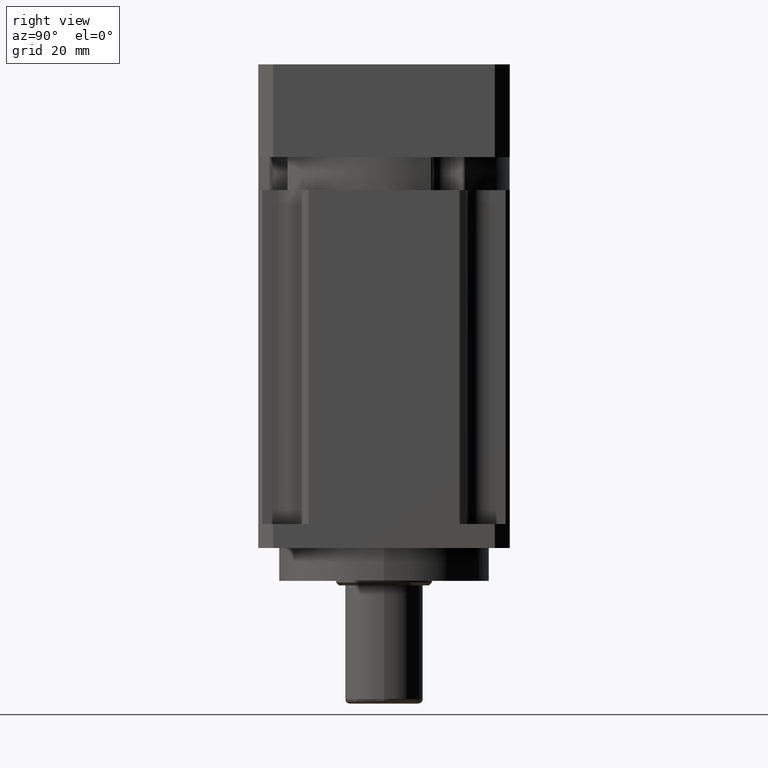
[diagram: clean part render]
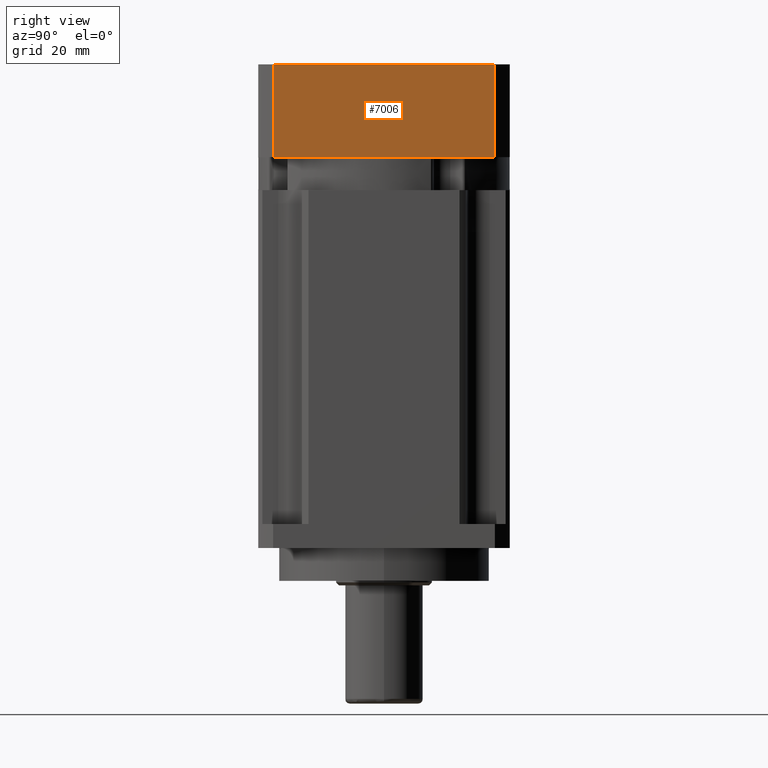
[diagram: same view with one face highlighted and labeled with its STEP entity id]
A machine part, right view. The second image highlights one B-rep face of the part: STEP entity #7006.
In plain terms, the highlighted planar face has unit normal (-1, 0, 0).
Its self-contained STEP definition (entity closure, byte-faithful):
#71 = EDGE_CURVE ( 'NONE', #4379, #11009, #10958, .T. ) ;
#328 = VERTEX_POINT ( 'NONE', #4362 ) ;
#368 = CARTESIAN_POINT ( 'NONE',  ( -18.52025917745212500, 0.0000000000000000000, -20.99999999999998900 ) ) ;
#669 = DIRECTION ( 'NONE',  ( 1.000000000000000000, 0.0000000000000000000, -0.0000000000000000000 ) ) ;
#974 = VECTOR ( 'NONE', #11141, 1000.000000000000000 ) ;
#1100 = EDGE_CURVE ( 'NONE', #4379, #328, #5325, .T. ) ;
#1278 = ORIENTED_EDGE ( 'NONE', *, *, #1100, .F. ) ;
#1489 = PLANE ( 'NONE',  #9237 ) ;
#1578 = ORIENTED_EDGE ( 'NONE', *, *, #3317, .F. ) ;
#2336 = LINE ( 'NONE', #8441, #10924 ) ;
#2935 = DIRECTION ( 'NONE',  ( -0.0000000000000000000, -1.000000000000000000, -0.0000000000000000000 ) ) ;
#2996 = ORIENTED_EDGE ( 'NONE', *, *, #10440, .T. ) ;
#3245 = DIRECTION ( 'NONE',  ( -1.000000000000000000, -0.0000000000000000000, -0.0000000000000000000 ) ) ;
#3317 = EDGE_CURVE ( 'NONE', #328, #9933, #2336, .T. ) ;
#3689 = FACE_OUTER_BOUND ( 'NONE', #5082, .T. ) ;
#4261 = CARTESIAN_POINT ( 'NONE',  ( -18.52025917745212500, 15.50000000000000000, -20.99999999999998900 ) ) ;
#4362 = CARTESIAN_POINT ( 'NONE',  ( -18.52025917745212500, 15.50000000000000000, -20.99999999999998900 ) ) ;
#4379 = VERTEX_POINT ( 'NONE', #9506 ) ;
#5082 = EDGE_LOOP ( 'NONE', ( #2996, #1578, #1278, #5130 ) ) ;
#5130 = ORIENTED_EDGE ( 'NONE', *, *, #71, .T. ) ;
#5325 = LINE ( 'NONE', #4261, #5738 ) ;
#5738 = VECTOR ( 'NONE', #3245, 1000.000000000000000 ) ;
#5808 = DIRECTION ( 'NONE',  ( -1.000000000000000000, -0.0000000000000000000, -0.0000000000000000000 ) ) ;
#5893 = CARTESIAN_POINT ( 'NONE',  ( 18.52025917745213200, 15.50000000000000000, -20.99999999999998200 ) ) ;
#5949 = CARTESIAN_POINT ( 'NONE',  ( 18.52025917745213200, 0.0000000000000000000, -20.99999999999998200 ) ) ;
#7006 = ADVANCED_FACE ( 'NONE', ( #3689 ), #1489, .F. ) ;
#8441 = CARTESIAN_POINT ( 'NONE',  ( -18.52025917745212500, 15.50000000000000000, -20.99999999999998900 ) ) ;
#9237 = AXIS2_PLACEMENT_3D ( 'NONE', #10500, #9684, #669 ) ;
#9506 = CARTESIAN_POINT ( 'NONE',  ( 18.52025917745213200, 15.50000000000000000, -20.99999999999998200 ) ) ;
#9684 = DIRECTION ( 'NONE',  ( 0.0000000000000000000, 0.0000000000000000000, 1.000000000000000000 ) ) ;
#9933 = VERTEX_POINT ( 'NONE', #10531 ) ;
#10289 = LINE ( 'NONE', #368, #11553 ) ;
#10440 = EDGE_CURVE ( 'NONE', #11009, #9933, #10289, .T. ) ;
#10500 = CARTESIAN_POINT ( 'NONE',  ( -18.52025917745212500, 15.50000000000000000, -20.99999999999998900 ) ) ;
#10531 = CARTESIAN_POINT ( 'NONE',  ( -18.52025917745212500, 0.0000000000000000000, -20.99999999999998900 ) ) ;
#10924 = VECTOR ( 'NONE', #2935, 1000.000000000000000 ) ;
#10958 = LINE ( 'NONE', #5893, #974 ) ;
#11009 = VERTEX_POINT ( 'NONE', #5949 ) ;
#11141 = DIRECTION ( 'NONE',  ( -0.0000000000000000000, -1.000000000000000000, -0.0000000000000000000 ) ) ;
#11553 = VECTOR ( 'NONE', #5808, 1000.000000000000000 ) ;